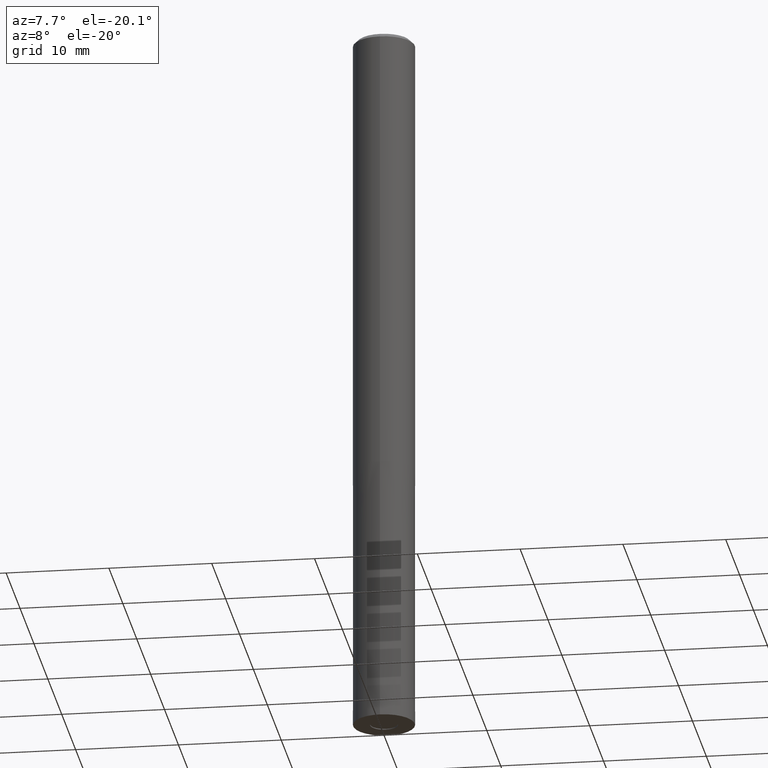
[diagram: clean part render]
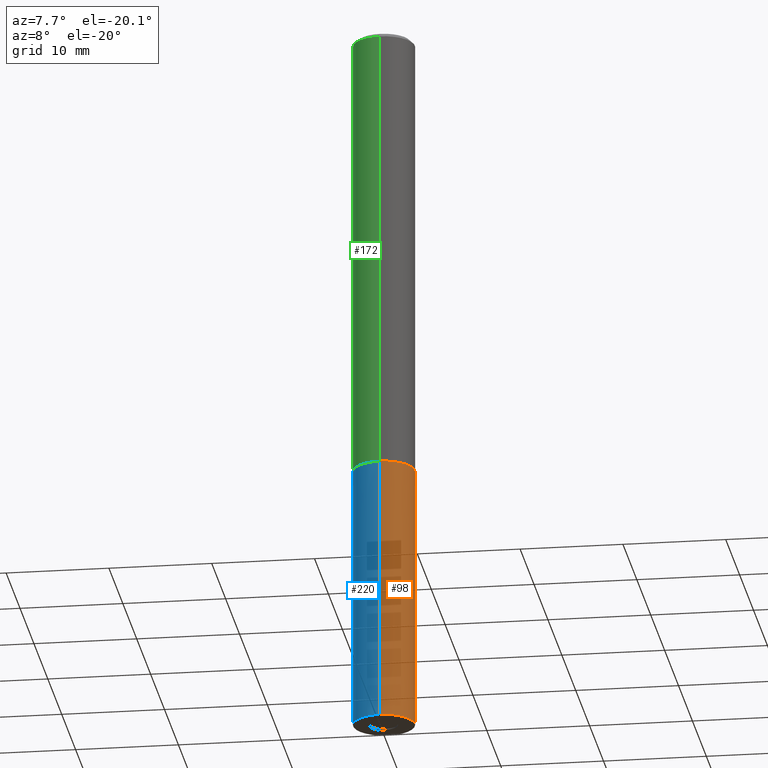
[diagram: same view with three faces highlighted in distinct colors, each labeled with its STEP entity id]
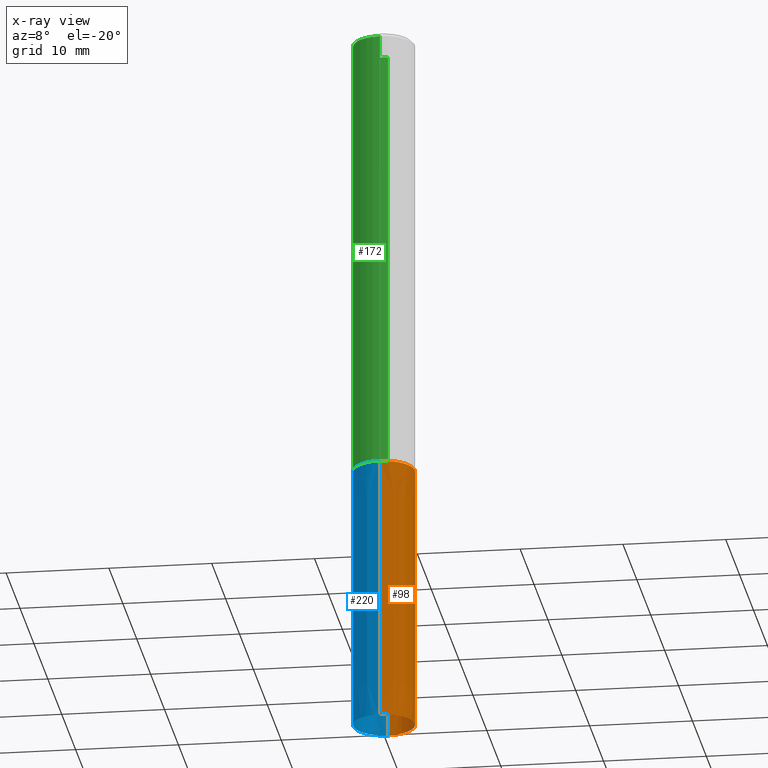
[diagram: x-ray of the same camera — body ghosted, the three highlighted faces saturated]
A machine part, auxiliary view with three faces highlighted in distinct colors.
The next image is the same camera in x-ray (body ghosted, the three faces saturated) — at least one of them is partly hidden behind the body in this view.
Their STEP definitions:

[orange] entity #98 — the highlighted conical surface has half-angle 0 deg.
#98=ADVANCED_FACE('',(#243),#244,.T.);
#122=VERTEX_POINT('',#271);
#124=EDGE_CURVE('',#164,#130,#273,.T.);
#130=VERTEX_POINT('',#280);
#146=EDGE_CURVE('',#122,#130,#301,.T.);
#164=VERTEX_POINT('',#320);
#174=EDGE_CURVE('',#164,#180,#332,.T.);
#176=EDGE_CURVE('',#180,#122,#334,.T.);
#180=VERTEX_POINT('',#338);
#243=FACE_OUTER_BOUND('',#398,.T.);
#244=CONICAL_SURFACE('',#399,2.99995,3.846153846143E-006);
#271=CARTESIAN_POINT('',(3.67381906146713E-016,-3.0,-70.0));
#273=CIRCLE('',#434,2.9999);
#280=CARTESIAN_POINT('',(3.67369660083175E-016,-2.9999,-44.0));
#301=LINE('',#470,#471);
#320=CARTESIAN_POINT('',(0.0,2.9999,-44.0));
#332=LINE('',#513,#514);
#334=CIRCLE('',#517,3.0);
#338=CARTESIAN_POINT('',(0.0,3.0,-70.0));
#398=EDGE_LOOP('',(#577,#578,#579,#580));
#399=AXIS2_PLACEMENT_3D('',#581,#582,#583);
#434=AXIS2_PLACEMENT_3D('',#610,#611,#612);
#470=CARTESIAN_POINT('',(3.67375783114944E-016,-2.99995,-57.0));
#471=VECTOR('',#656,1.0);
#513=CARTESIAN_POINT('',(-3.67375783114944E-016,2.99995,-57.0));
#514=VECTOR('',#698,1.0);
#517=AXIS2_PLACEMENT_3D('',#699,#700,#701);
#577=ORIENTED_EDGE('',*,*,#174,.F.);
#578=ORIENTED_EDGE('',*,*,#124,.T.);
#579=ORIENTED_EDGE('',*,*,#146,.F.);
#580=ORIENTED_EDGE('',*,*,#176,.F.);
#581=CARTESIAN_POINT('',(0.0,0.0,-57.0));
#582=DIRECTION('',(0.0,-0.0,-1.0));
#583=DIRECTION('',(0.0,1.0,0.0));
#610=CARTESIAN_POINT('',(0.0,0.0,-44.0));
#611=DIRECTION('',(0.0,0.0,-1.0));
#612=DIRECTION('',(0.0,1.0,0.0));
#656=DIRECTION('',(-4.71002443775348E-022,3.84615384613351E-006,0.999999999992604));
#698=DIRECTION('',(-4.71002443775348E-022,3.84615384613351E-006,-0.999999999992604));
#699=CARTESIAN_POINT('',(0.0,0.0,-70.0));
#700=DIRECTION('',(0.0,0.0,-1.0));
#701=DIRECTION('',(0.0,1.0,0.0));

[blue] entity #220 — the highlighted conical surface has half-angle 0 deg.
#122=VERTEX_POINT('',#271);
#130=VERTEX_POINT('',#280);
#134=EDGE_CURVE('',#122,#180,#284,.T.);
#146=EDGE_CURVE('',#122,#130,#301,.T.);
#164=VERTEX_POINT('',#320);
#174=EDGE_CURVE('',#164,#180,#332,.T.);
#180=VERTEX_POINT('',#338);
#202=EDGE_CURVE('',#130,#164,#362,.T.);
#220=ADVANCED_FACE('',(#382),#383,.T.);
#271=CARTESIAN_POINT('',(3.67381906146713E-016,-3.0,-70.0));
#280=CARTESIAN_POINT('',(3.67369660083175E-016,-2.9999,-44.0));
#284=CIRCLE('',#449,3.0);
#301=LINE('',#470,#471);
#320=CARTESIAN_POINT('',(0.0,2.9999,-44.0));
#332=LINE('',#513,#514);
#338=CARTESIAN_POINT('',(0.0,3.0,-70.0));
#362=CIRCLE('',#549,2.9999);
#382=FACE_OUTER_BOUND('',#573,.T.);
#383=CONICAL_SURFACE('',#574,2.99995,3.846153846143E-006);
#449=AXIS2_PLACEMENT_3D('',#625,#626,#627);
#470=CARTESIAN_POINT('',(3.67375783114944E-016,-2.99995,-57.0));
#471=VECTOR('',#656,1.0);
#513=CARTESIAN_POINT('',(-3.67375783114944E-016,2.99995,-57.0));
#514=VECTOR('',#698,1.0);
#549=AXIS2_PLACEMENT_3D('',#725,#726,#727);
#573=EDGE_LOOP('',(#751,#752,#753,#754));
#574=AXIS2_PLACEMENT_3D('',#755,#756,#757);
#625=CARTESIAN_POINT('',(0.0,0.0,-70.0));
#626=DIRECTION('',(0.0,0.0,-1.0));
#627=DIRECTION('',(0.0,1.0,0.0));
#656=DIRECTION('',(-4.71002443775348E-022,3.84615384613351E-006,0.999999999992604));
#698=DIRECTION('',(-4.71002443775348E-022,3.84615384613351E-006,-0.999999999992604));
#725=CARTESIAN_POINT('',(0.0,0.0,-44.0));
#726=DIRECTION('',(0.0,0.0,-1.0));
#727=DIRECTION('',(0.0,1.0,0.0));
#751=ORIENTED_EDGE('',*,*,#174,.T.);
#752=ORIENTED_EDGE('',*,*,#134,.F.);
#753=ORIENTED_EDGE('',*,*,#146,.T.);
#754=ORIENTED_EDGE('',*,*,#202,.T.);
#755=CARTESIAN_POINT('',(0.0,0.0,-57.0));
#756=DIRECTION('',(0.0,-0.0,-1.0));
#757=DIRECTION('',(0.0,1.0,0.0));

[green] entity #172 — the highlighted cylindrical surface (edge-blend (fillet) strip) has radius 3 mm, axis along (-0, -0, 1).
#104=VERTEX_POINT('',#251);
#112=EDGE_CURVE('',#104,#206,#261,.T.);
#138=EDGE_CURVE('',#192,#206,#290,.T.);
#162=EDGE_CURVE('',#196,#104,#318,.T.);
#172=ADVANCED_FACE('',(#329),#330,.T.);
#192=VERTEX_POINT('',#351);
#196=VERTEX_POINT('',#356);
#206=VERTEX_POINT('',#366);
#208=EDGE_CURVE('',#192,#196,#368,.T.);
#251=CARTESIAN_POINT('',(0.0,3.0,-0.399999999999999));
#261=LINE('',#417,#418);
#290=CIRCLE('',#456,3.0);
#318=CIRCLE('',#498,3.0);
#329=FACE_OUTER_BOUND('',#509,.T.);
#330=CYLINDRICAL_SURFACE('',#510,3.0);
#351=CARTESIAN_POINT('',(3.67381906146713E-016,-3.0,-44.0));
#356=CARTESIAN_POINT('',(3.67381906146713E-016,-3.0,-0.399999999999999));
#366=CARTESIAN_POINT('',(0.0,3.0,-44.0));
#368=LINE('',#557,#558);
#417=CARTESIAN_POINT('',(-3.67381906146713E-016,3.0,-22.2));
#418=VECTOR('',#600,1.0);
#456=AXIS2_PLACEMENT_3D('',#636,#637,#638);
#498=AXIS2_PLACEMENT_3D('',#675,#676,#677);
#509=EDGE_LOOP('',(#691,#692,#693,#694));
#510=AXIS2_PLACEMENT_3D('',#695,#696,#697);
#557=CARTESIAN_POINT('',(3.67381906146713E-016,-3.0,-22.2));
#558=VECTOR('',#731,1.0);
#600=DIRECTION('',(0.0,0.0,-1.0));
#636=CARTESIAN_POINT('',(0.0,0.0,-44.0));
#637=DIRECTION('',(0.0,0.0,-1.0));
#638=DIRECTION('',(0.0,1.0,0.0));
#675=CARTESIAN_POINT('',(0.0,0.0,-0.399999999999999));
#676=DIRECTION('',(0.0,0.0,-1.0));
#677=DIRECTION('',(0.0,1.0,0.0));
#691=ORIENTED_EDGE('',*,*,#112,.T.);
#692=ORIENTED_EDGE('',*,*,#138,.F.);
#693=ORIENTED_EDGE('',*,*,#208,.T.);
#694=ORIENTED_EDGE('',*,*,#162,.T.);
#695=CARTESIAN_POINT('',(0.0,0.0,-22.2));
#696=DIRECTION('',(-0.0,-0.0,1.0));
#697=DIRECTION('',(0.0,1.0,0.0));
#731=DIRECTION('',(-0.0,-0.0,1.0));